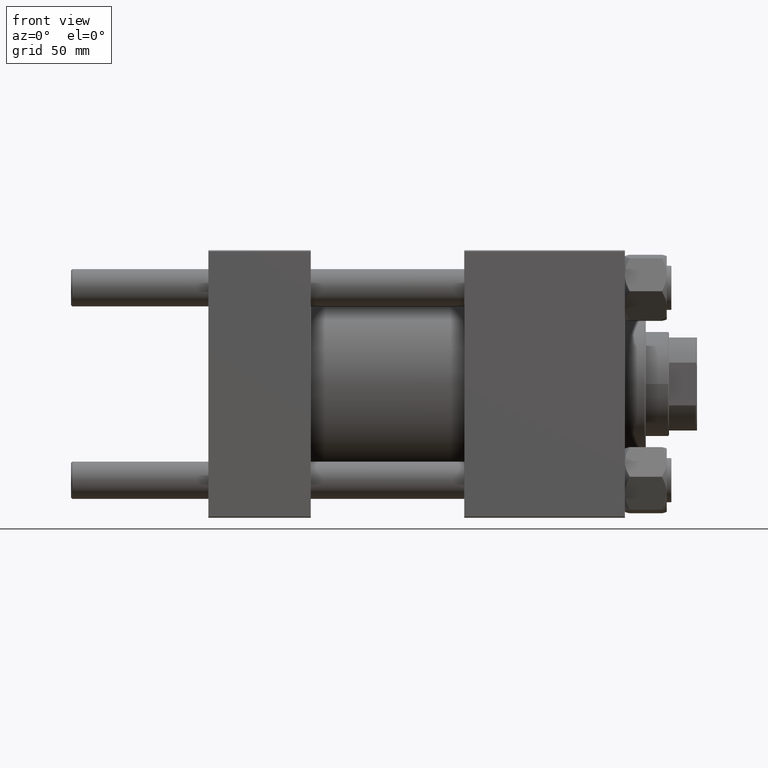
[diagram: clean part render]
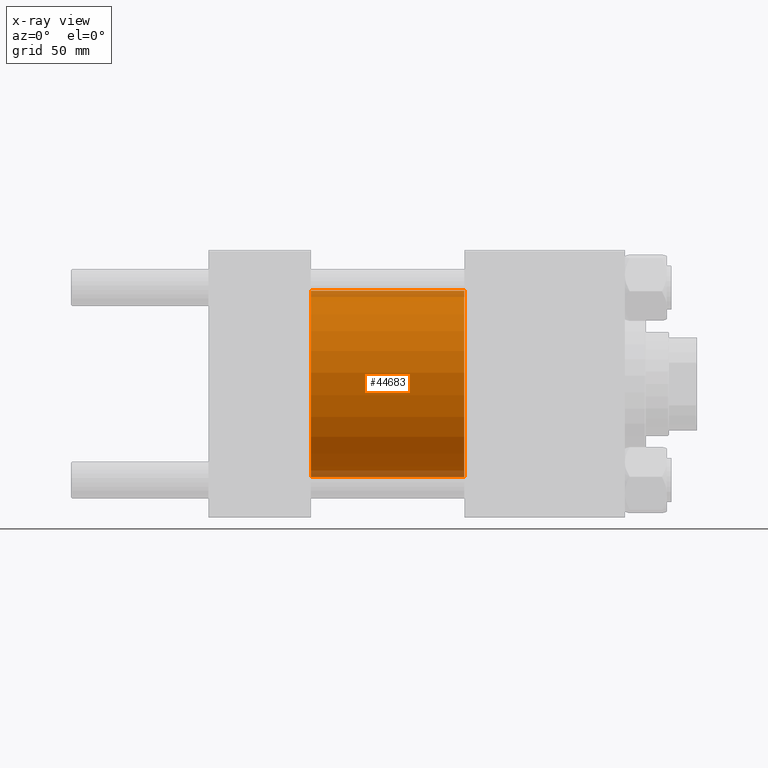
[diagram: x-ray — body ghosted, one internal face saturated and labeled with its STEP entity id]
A machine part, front view, then the same camera in x-ray: the body is ghosted and one INTERNAL B-rep face — a face not visible from any outside direction — is saturated and labeled: STEP entity #44683.
In plain terms, the highlighted cylindrical surface (partial cylindrical patch) has radius 40 mm, axis along (-1, -0, -0).
Its self-contained STEP definition (entity closure, byte-faithful):
#746 = CARTESIAN_POINT ( 'NONE',  ( 110.0000000000000000, 4.898587196589413026E-15, -40.00000000000000000 ) ) ;
#2248 = CARTESIAN_POINT ( 'NONE',  ( 110.0000000000000000, 0.000000000000000000, 40.00000000000000000 ) ) ;
#3624 = AXIS2_PLACEMENT_3D ( 'NONE', #9137, #36134, #16801 ) ;
#6097 = AXIS2_PLACEMENT_3D ( 'NONE', #21919, #6619, #25983 ) ;
#6619 = DIRECTION ( 'NONE',  ( -1.000000000000000000, -0.000000000000000000, -0.000000000000000000 ) ) ;
#7259 = VERTEX_POINT ( 'NONE', #7910 ) ;
#7887 = ORIENTED_EDGE ( 'NONE', *, *, #21697, .F. ) ;
#7910 = CARTESIAN_POINT ( 'NONE',  ( 110.0000000000000000, 0.000000000000000000, 40.00000000000000000 ) ) ;
#8417 = CIRCLE ( 'NONE', #42469, 40.00000000000000000 ) ;
#8767 = EDGE_LOOP ( 'NONE', ( #31379, #36512, #7887, #18169 ) ) ;
#8980 = DIRECTION ( 'NONE',  ( 0.000000000000000000, 0.000000000000000000, -1.000000000000000000 ) ) ;
#9137 = CARTESIAN_POINT ( 'NONE',  ( 44.00000000000000000, 0.000000000000000000, 0.000000000000000000 ) ) ;
#9211 = VERTEX_POINT ( 'NONE', #23221 ) ;
#9725 = CARTESIAN_POINT ( 'NONE',  ( 44.00000000000000000, 0.000000000000000000, 40.00000000000000000 ) ) ;
#10410 = VERTEX_POINT ( 'NONE', #746 ) ;
#12807 = DIRECTION ( 'NONE',  ( 1.000000000000000000, 0.000000000000000000, 0.000000000000000000 ) ) ;
#15726 = EDGE_CURVE ( 'NONE', #7259, #10410, #8417, .T. ) ;
#16694 = CARTESIAN_POINT ( 'NONE',  ( 110.0000000000000000, 4.898587196589413026E-15, -40.00000000000000000 ) ) ;
#16801 = DIRECTION ( 'NONE',  ( 0.000000000000000000, 0.000000000000000000, -1.000000000000000000 ) ) ;
#17852 = CYLINDRICAL_SURFACE ( 'NONE', #6097, 40.00000000000000000 ) ;
#18169 = ORIENTED_EDGE ( 'NONE', *, *, #19934, .F. ) ;
#19934 = EDGE_CURVE ( 'NONE', #7259, #38802, #33291, .T. ) ;
#20516 = LINE ( 'NONE', #16694, #38639 ) ;
#21697 = EDGE_CURVE ( 'NONE', #38802, #9211, #33706, .T. ) ;
#21919 = CARTESIAN_POINT ( 'NONE',  ( 110.0000000000000000, 0.000000000000000000, 0.000000000000000000 ) ) ;
#23221 = CARTESIAN_POINT ( 'NONE',  ( 44.00000000000000000, 4.898587196589413026E-15, -40.00000000000000000 ) ) ;
#25731 = FACE_OUTER_BOUND ( 'NONE', #8767, .T. ) ;
#25983 = DIRECTION ( 'NONE',  ( 0.000000000000000000, 0.000000000000000000, 1.000000000000000000 ) ) ;
#31379 = ORIENTED_EDGE ( 'NONE', *, *, #15726, .T. ) ;
#32146 = CARTESIAN_POINT ( 'NONE',  ( 110.0000000000000000, 0.000000000000000000, 0.000000000000000000 ) ) ;
#33291 = LINE ( 'NONE', #2248, #43415 ) ;
#33706 = CIRCLE ( 'NONE', #3624, 40.00000000000000000 ) ;
#36134 = DIRECTION ( 'NONE',  ( 1.000000000000000000, 0.000000000000000000, 0.000000000000000000 ) ) ;
#36276 = DIRECTION ( 'NONE',  ( -1.000000000000000000, -0.000000000000000000, -0.000000000000000000 ) ) ;
#36512 = ORIENTED_EDGE ( 'NONE', *, *, #44458, .T. ) ;
#38639 = VECTOR ( 'NONE', #36276, 1000.000000000000000 ) ;
#38802 = VERTEX_POINT ( 'NONE', #9725 ) ;
#42469 = AXIS2_PLACEMENT_3D ( 'NONE', #32146, #12807, #8980 ) ;
#43415 = VECTOR ( 'NONE', #45266, 1000.000000000000000 ) ;
#44458 = EDGE_CURVE ( 'NONE', #10410, #9211, #20516, .T. ) ;
#44683 = ADVANCED_FACE ( 'NONE', ( #25731 ), #17852, .F. ) ;
#45266 = DIRECTION ( 'NONE',  ( -1.000000000000000000, -0.000000000000000000, -0.000000000000000000 ) ) ;